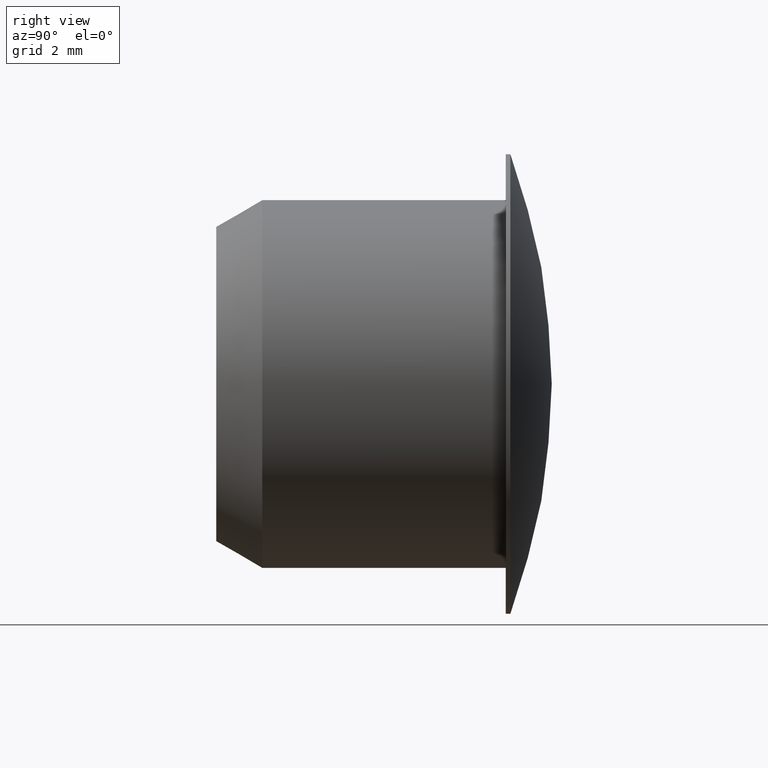
[diagram: clean part render]
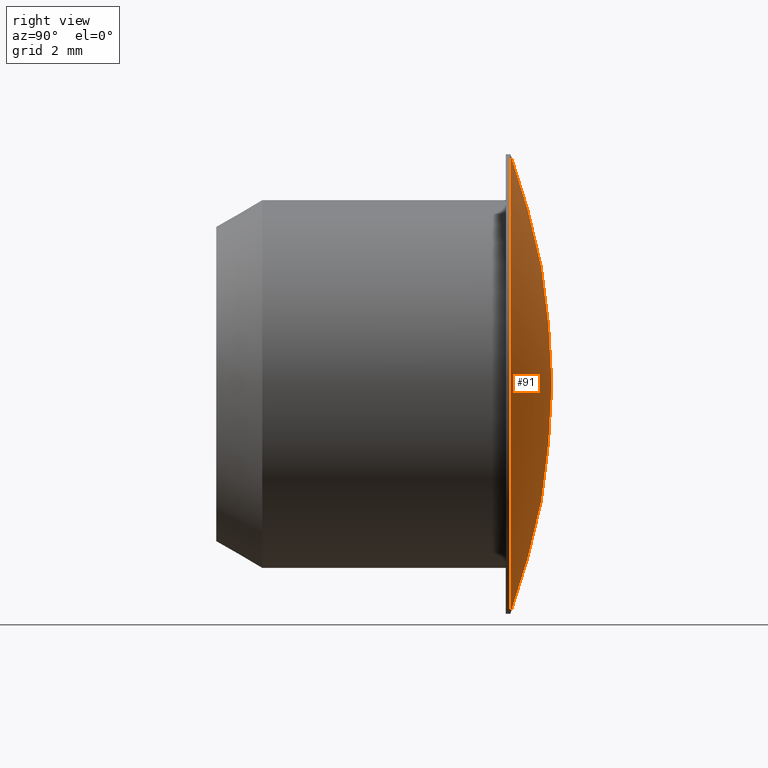
[diagram: same view with one face highlighted and labeled with its STEP entity id]
A machine part, right view. The second image highlights one B-rep face of the part: STEP entity #91.
In plain terms, the highlighted spherical surface has radius 14.3389 mm.
Its self-contained STEP definition (entity closure, byte-faithful):
#15=SPHERICAL_SURFACE('',#107,14.3388888888889);
#33=FACE_OUTER_BOUND('',#46,.T.);
#46=EDGE_LOOP('',(#81));
#55=CIRCLE('',#106,5.);
#62=VERTEX_POINT('',#159);
#69=EDGE_CURVE('',#62,#62,#55,.T.);
#81=ORIENTED_EDGE('',*,*,#69,.T.);
#91=ADVANCED_FACE('',(#33),#15,.T.);
#106=AXIS2_PLACEMENT_3D('',#160,#133,#134);
#107=AXIS2_PLACEMENT_3D('',#161,#135,#136);
#133=DIRECTION('center_axis',(0.,1.,0.));
#134=DIRECTION('ref_axis',(1.,0.,0.));
#135=DIRECTION('center_axis',(6.12323399573677E-17,0.,1.));
#136=DIRECTION('ref_axis',(1.,0.,0.));
#159=CARTESIAN_POINT('',(-5.,6.4,0.));
#160=CARTESIAN_POINT('Origin',(0.,6.4,0.));
#161=CARTESIAN_POINT('Origin',(0.,-7.03888888888888,0.));